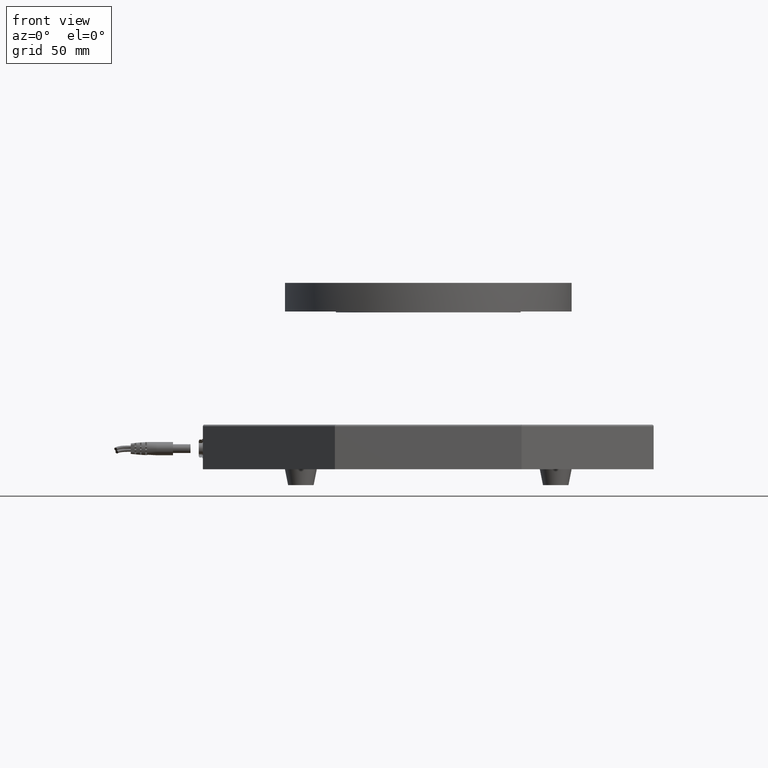
[diagram: clean part render]
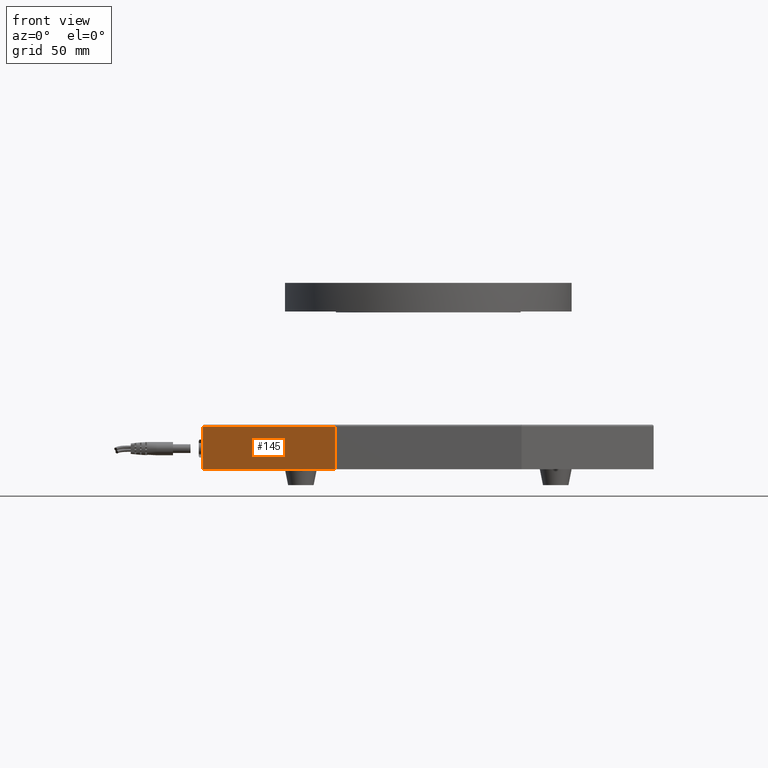
[diagram: same view with one face highlighted and labeled with its STEP entity id]
A machine part, front view. The second image highlights one B-rep face of the part: STEP entity #145.
In plain terms, the highlighted planar face has unit normal (-0.7071, -0.7071, 0).
Its self-contained STEP definition (entity closure, byte-faithful):
#145=ADVANCED_FACE('',(#506),#4819,.T.);
#506=FACE_OUTER_BOUND('',#867,.T.);
#867=EDGE_LOOP('',(#1743,#1744,#1745,#1746));
#1743=ORIENTED_EDGE('',*,*,#2857,.F.);
#1744=ORIENTED_EDGE('',*,*,#2849,.T.);
#1745=ORIENTED_EDGE('',*,*,#2858,.T.);
#1746=ORIENTED_EDGE('',*,*,#2873,.F.);
#2849=EDGE_CURVE('',#4299,#4306,#3564,.T.);
#2857=EDGE_CURVE('',#4299,#4315,#3572,.T.);
#2858=EDGE_CURVE('',#4306,#4316,#3573,.T.);
#2873=EDGE_CURVE('',#4315,#4316,#3951,.T.);
#3564=B_SPLINE_CURVE_WITH_KNOTS('',1,(#9892,#9893),.UNSPECIFIED.,.F.,.F.,
(2,2),(937.779505212687,1055.00194336427),.UNSPECIFIED.);
#3572=B_SPLINE_CURVE_WITH_KNOTS('',1,(#9908,#9909),.UNSPECIFIED.,.F.,.F.,
(2,2),(0.,27.),.UNSPECIFIED.);
#3573=B_SPLINE_CURVE_WITH_KNOTS('',1,(#9910,#9911),.UNSPECIFIED.,.F.,.F.,
(2,2),(0.,27.),.UNSPECIFIED.);
#3951=(
BOUNDED_CURVE()
B_SPLINE_CURVE(3,(#9956,#9957,#9958,#9959),.UNSPECIFIED.,.F.,.F.)
B_SPLINE_CURVE_WITH_KNOTS((4,4),(9.74914593498966E-16,117.222438151586),
 .UNSPECIFIED.)
CURVE()
GEOMETRIC_REPRESENTATION_ITEM()
RATIONAL_B_SPLINE_CURVE((1.,1.,1.,1.))
REPRESENTATION_ITEM('')
);
#4299=VERTEX_POINT('',#9550);
#4306=VERTEX_POINT('',#9557);
#4315=VERTEX_POINT('',#9566);
#4316=VERTEX_POINT('',#9567);
#4819=PLANE('',#5004);
#5004=AXIS2_PLACEMENT_3D('',#8263,#5174,$);
#5174=DIRECTION('',(-0.707106781186547,-0.707106781186547,0.));
#8263=CARTESIAN_POINT('',(-141.5,-58.611219075793,0.));
#9550=CARTESIAN_POINT('',(-141.5,-58.611219075793,0.));
#9557=CARTESIAN_POINT('',(-58.611219075793,-141.5,0.));
#9566=CARTESIAN_POINT('',(-141.5,-58.611219075793,27.));
#9567=CARTESIAN_POINT('',(-58.611219075793,-141.5,27.));
#9892=CARTESIAN_POINT('',(-141.5,-58.611219075793,0.));
#9893=CARTESIAN_POINT('',(-58.611219075793,-141.5,0.));
#9908=CARTESIAN_POINT('',(-141.5,-58.611219075793,0.));
#9909=CARTESIAN_POINT('',(-141.5,-58.611219075793,27.));
#9910=CARTESIAN_POINT('',(-58.611219075793,-141.5,0.));
#9911=CARTESIAN_POINT('',(-58.611219075793,-141.5,27.));
#9956=CARTESIAN_POINT('',(-141.5,-58.611219075793,27.));
#9957=CARTESIAN_POINT('',(-113.870406358598,-86.2408127171953,27.));
#9958=CARTESIAN_POINT('',(-86.2408127171954,-113.870406358598,27.));
#9959=CARTESIAN_POINT('',(-58.611219075793,-141.5,27.));